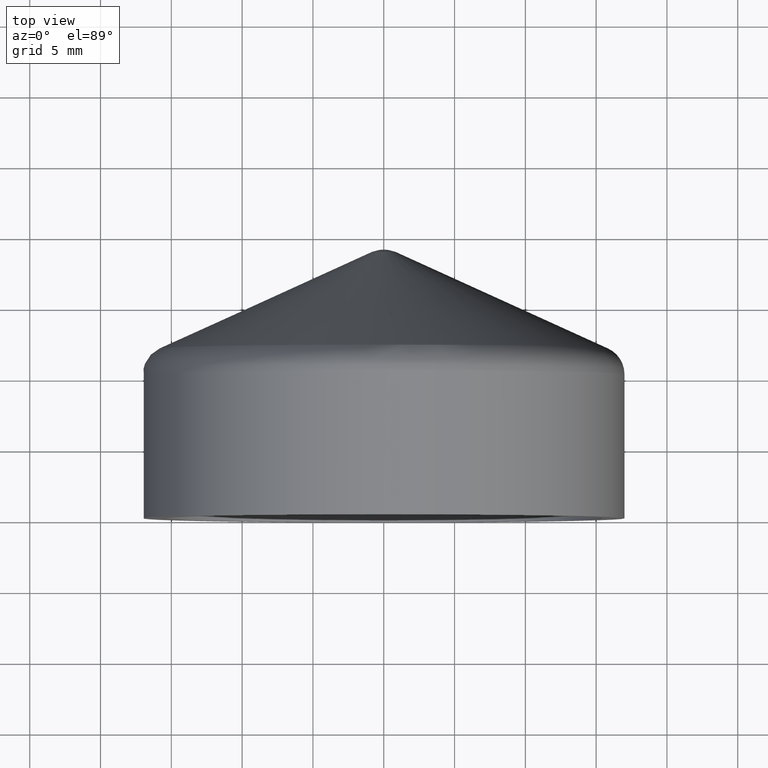
[diagram: clean part render]
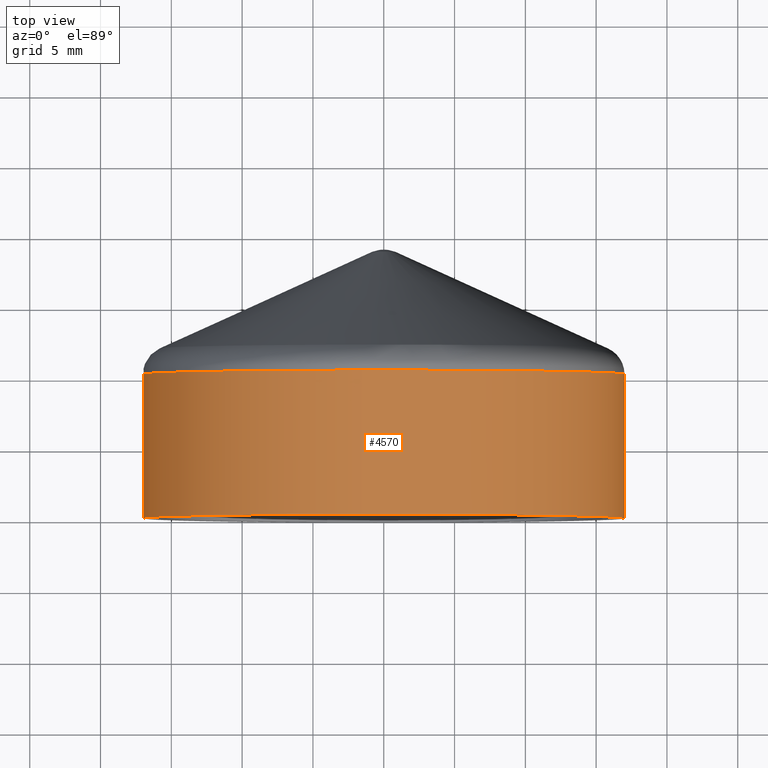
[diagram: same view with one face highlighted and labeled with its STEP entity id]
A machine part, top view. The second image highlights one B-rep face of the part: STEP entity #4570.
In plain terms, the highlighted cylindrical surface (bore or boss wall) has radius 17 mm, axis along (0, -1, -0).
Its self-contained STEP definition (entity closure, byte-faithful):
#141 = DIRECTION ( 'NONE',  ( 2.041077998578925000E-017, -1.000000000000000000, -0.0000000000000000000 ) ) ;
#308 = EDGE_CURVE ( 'NONE', #1363, #1363, #2156, .T. ) ;
#403 = CARTESIAN_POINT ( 'NONE',  ( 17.00000000000000000, 10.17937860718205400, 0.0000000000000000000 ) ) ;
#1013 = AXIS2_PLACEMENT_3D ( 'NONE', #7689, #6946, #2216 ) ;
#1080 = FACE_OUTER_BOUND ( 'NONE', #4529, .T. ) ;
#1269 = CARTESIAN_POINT ( 'NONE',  ( 1.800357625867530200E-016, 10.17937860718205400, 0.0000000000000000000 ) ) ;
#1363 = VERTEX_POINT ( 'NONE', #403 ) ;
#1778 = CARTESIAN_POINT ( 'NONE',  ( 17.00000000000000000, 3.469832597584172400E-016, 0.0000000000000000000 ) ) ;
#1823 = EDGE_CURVE ( 'NONE', #6976, #6976, #3618, .T. ) ;
#2156 = CIRCLE ( 'NONE', #5386, 17.00000000000000000 ) ;
#2216 = DIRECTION ( 'NONE',  ( 1.000000000000000000, 2.041077998578925000E-017, 0.0000000000000000000 ) ) ;
#2499 = FACE_OUTER_BOUND ( 'NONE', #3249, .T. ) ;
#2859 = DIRECTION ( 'NONE',  ( 1.000000000000000000, 0.0000000000000000000, 0.0000000000000000000 ) ) ;
#2892 = CARTESIAN_POINT ( 'NONE',  ( 3.061616997868383000E-017, 17.50000000000000000, 0.0000000000000000000 ) ) ;
#3249 = EDGE_LOOP ( 'NONE', ( #4620 ) ) ;
#3259 = ORIENTED_EDGE ( 'NONE', *, *, #1823, .F. ) ;
#3563 = CYLINDRICAL_SURFACE ( 'NONE', #4545, 17.00000000000000000 ) ;
#3618 = CIRCLE ( 'NONE', #1013, 17.00000000000000000 ) ;
#4529 = EDGE_LOOP ( 'NONE', ( #3259 ) ) ;
#4545 = AXIS2_PLACEMENT_3D ( 'NONE', #2892, #141, #2859 ) ;
#4570 = ADVANCED_FACE ( 'NONE', ( #2499, #1080 ), #3563, .T. ) ;
#4620 = ORIENTED_EDGE ( 'NONE', *, *, #308, .T. ) ;
#4735 = DIRECTION ( 'NONE',  ( 2.041077998578925000E-017, -1.000000000000000000, -0.0000000000000000000 ) ) ;
#5386 = AXIS2_PLACEMENT_3D ( 'NONE', #1269, #4735, #6823 ) ;
#6823 = DIRECTION ( 'NONE',  ( 1.000000000000000000, 0.0000000000000000000, 0.0000000000000000000 ) ) ;
#6946 = DIRECTION ( 'NONE',  ( 2.041077998578925000E-017, -1.000000000000000000, -0.0000000000000000000 ) ) ;
#6976 = VERTEX_POINT ( 'NONE', #1778 ) ;
#7689 = CARTESIAN_POINT ( 'NONE',  ( 3.878048197299957200E-016, 0.0000000000000000000, 0.0000000000000000000 ) ) ;